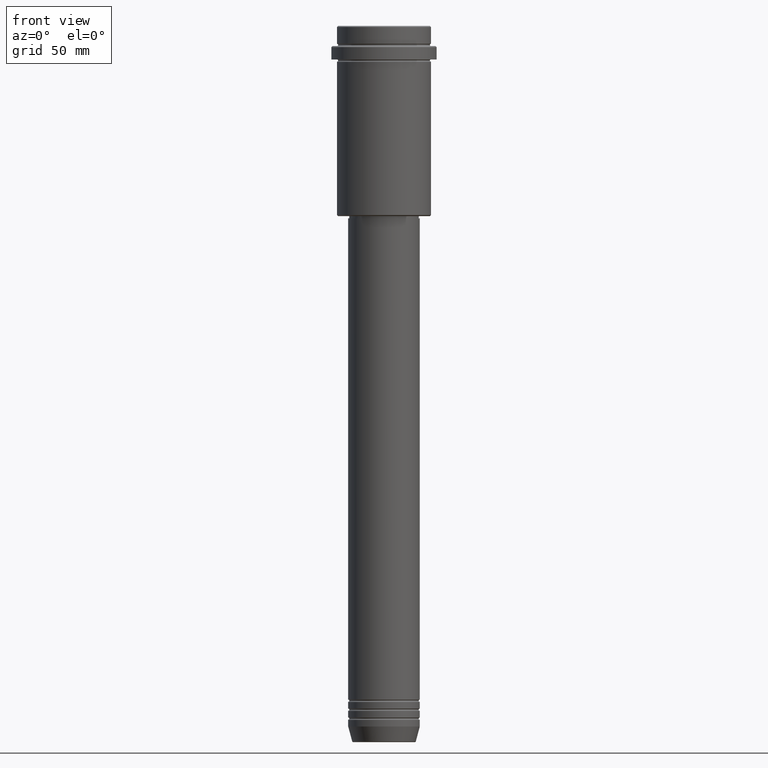
[diagram: clean part render]
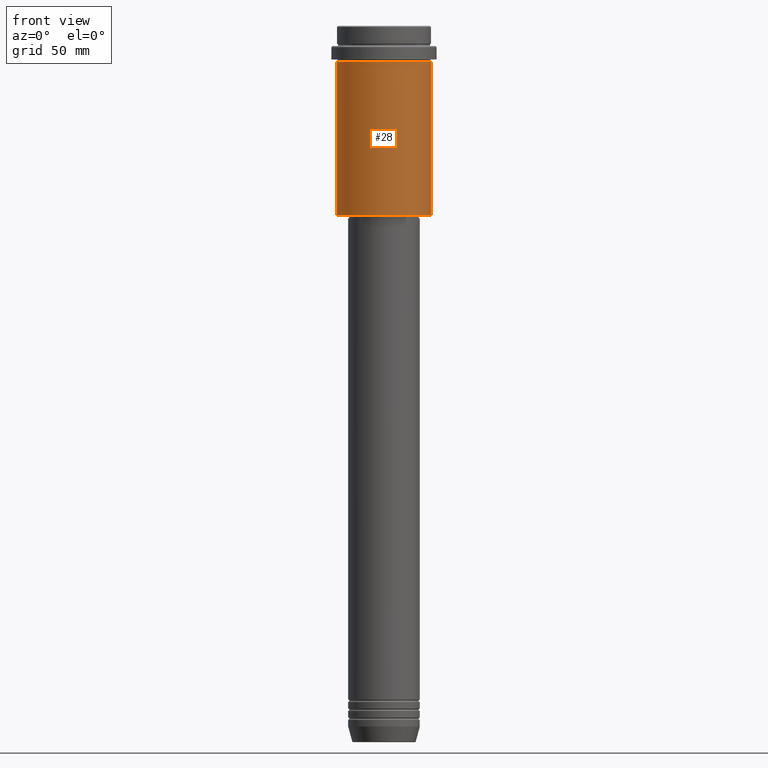
[diagram: same view with one face highlighted and labeled with its STEP entity id]
A machine part, front view. The second image highlights one B-rep face of the part: STEP entity #28.
In plain terms, the highlighted cylindrical surface (partial cylindrical patch) has radius 21 mm, axis along (-0, -0, 1).
Its self-contained STEP definition (entity closure, byte-faithful):
#8 = VECTOR ( 'NONE', #837, 1000.000000000000000 ) ;
#28 = ADVANCED_FACE ( 'NONE', ( #1029 ), #1259, .T. ) ;
#70 = EDGE_CURVE ( 'NONE', #1132, #1000, #165, .T. ) ;
#136 = EDGE_LOOP ( 'NONE', ( #1203, #776, #1248, #415 ) ) ;
#164 = CARTESIAN_POINT ( 'NONE',  ( 20.99999999999999645, 0.000000000000000000, -84.49999999999997158 ) ) ;
#165 = CIRCLE ( 'NONE', #372, 20.99999999999999645 ) ;
#260 = DIRECTION ( 'NONE',  ( -0.000000000000000000, -0.000000000000000000, 1.000000000000000000 ) ) ;
#281 = CARTESIAN_POINT ( 'NONE',  ( -20.99999999999999645, 2.571758278209441267E-15, 0.000000000000000000 ) ) ;
#319 = EDGE_CURVE ( 'NONE', #731, #1000, #938, .T. ) ;
#327 = VECTOR ( 'NONE', #260, 1000.000000000000000 ) ;
#372 = AXIS2_PLACEMENT_3D ( 'NONE', #1346, #806, #1050 ) ;
#382 = CARTESIAN_POINT ( 'NONE',  ( 20.99999999999999645, 0.000000000000000000, 0.000000000000000000 ) ) ;
#415 = ORIENTED_EDGE ( 'NONE', *, *, #70, .F. ) ;
#448 = VERTEX_POINT ( 'NONE', #841 ) ;
#474 = CARTESIAN_POINT ( 'NONE',  ( 0.000000000000000000, 0.000000000000000000, 0.000000000000000000 ) ) ;
#613 = DIRECTION ( 'NONE',  ( 1.000000000000000000, 0.000000000000000000, 0.000000000000000000 ) ) ;
#619 = LINE ( 'NONE', #281, #8 ) ;
#665 = EDGE_CURVE ( 'NONE', #448, #1132, #619, .T. ) ;
#691 = CARTESIAN_POINT ( 'NONE',  ( 0.000000000000000000, 0.000000000000000000, -84.49999999999997158 ) ) ;
#718 = DIRECTION ( 'NONE',  ( -1.000000000000000000, 0.000000000000000000, 0.000000000000000000 ) ) ;
#731 = VERTEX_POINT ( 'NONE', #164 ) ;
#768 = AXIS2_PLACEMENT_3D ( 'NONE', #474, #1274, #613 ) ;
#776 = ORIENTED_EDGE ( 'NONE', *, *, #1369, .T. ) ;
#806 = DIRECTION ( 'NONE',  ( -0.000000000000000000, -0.000000000000000000, 1.000000000000000000 ) ) ;
#837 = DIRECTION ( 'NONE',  ( -0.000000000000000000, -0.000000000000000000, 1.000000000000000000 ) ) ;
#841 = CARTESIAN_POINT ( 'NONE',  ( -20.99999999999999645, 2.571758278209441267E-15, -84.49999999999997158 ) ) ;
#938 = LINE ( 'NONE', #382, #327 ) ;
#945 = DIRECTION ( 'NONE',  ( -0.000000000000000000, -0.000000000000000000, 1.000000000000000000 ) ) ;
#1000 = VERTEX_POINT ( 'NONE', #1166 ) ;
#1029 = FACE_OUTER_BOUND ( 'NONE', #136, .T. ) ;
#1050 = DIRECTION ( 'NONE',  ( 1.000000000000000000, 0.000000000000000000, 0.000000000000000000 ) ) ;
#1132 = VERTEX_POINT ( 'NONE', #1410 ) ;
#1166 = CARTESIAN_POINT ( 'NONE',  ( 20.99999999999999645, 0.000000000000000000, -16.00000000000000355 ) ) ;
#1203 = ORIENTED_EDGE ( 'NONE', *, *, #665, .F. ) ;
#1248 = ORIENTED_EDGE ( 'NONE', *, *, #319, .T. ) ;
#1259 = CYLINDRICAL_SURFACE ( 'NONE', #768, 20.99999999999999645 ) ;
#1274 = DIRECTION ( 'NONE',  ( -0.000000000000000000, -0.000000000000000000, 1.000000000000000000 ) ) ;
#1282 = AXIS2_PLACEMENT_3D ( 'NONE', #691, #945, #718 ) ;
#1341 = CIRCLE ( 'NONE', #1282, 20.99999999999999645 ) ;
#1346 = CARTESIAN_POINT ( 'NONE',  ( 0.000000000000000000, 0.000000000000000000, -16.00000000000000355 ) ) ;
#1369 = EDGE_CURVE ( 'NONE', #448, #731, #1341, .T. ) ;
#1410 = CARTESIAN_POINT ( 'NONE',  ( -20.99999999999999645, 2.571758278209441267E-15, -16.00000000000000355 ) ) ;